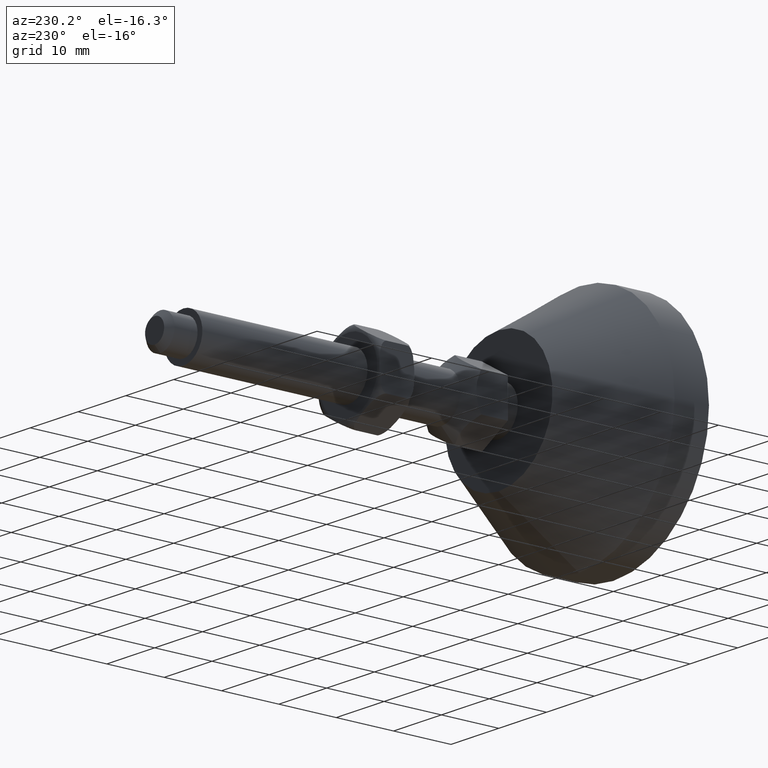
[diagram: clean part render]
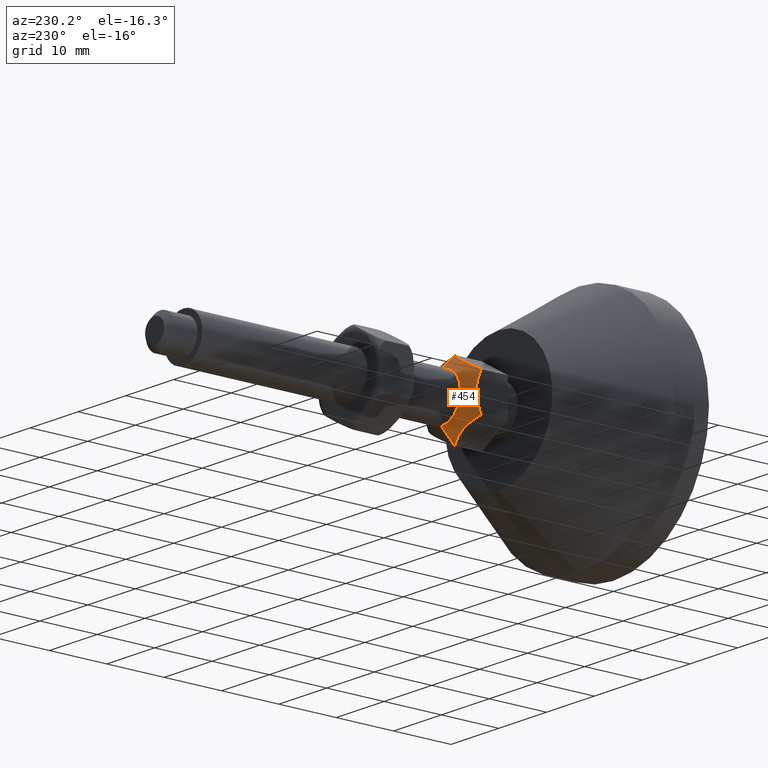
[diagram: same view with one face highlighted and labeled with its STEP entity id]
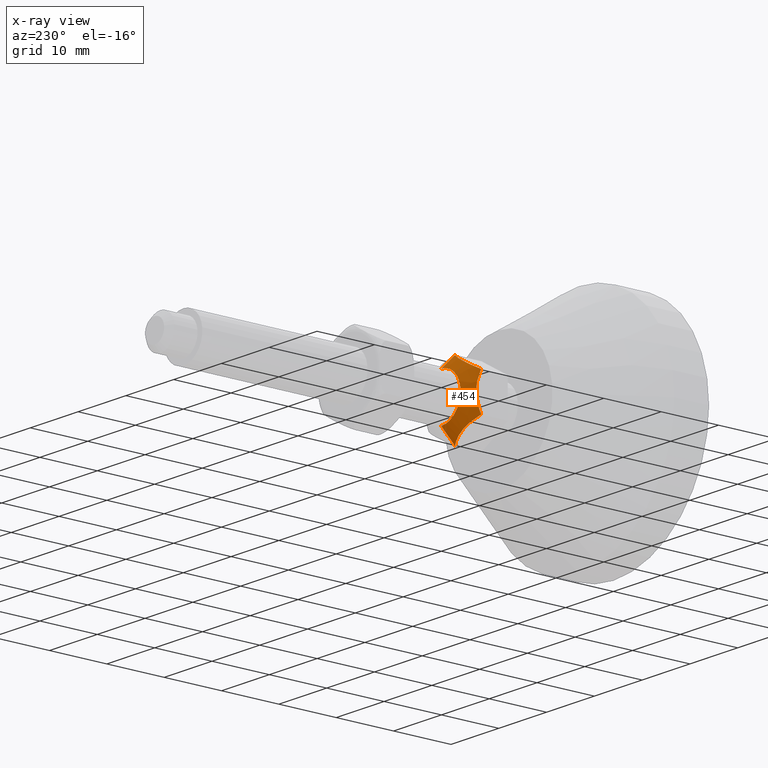
[diagram: x-ray of the same camera — body ghosted, the highlighted face saturated]
A machine part, auxiliary view. The second image highlights one B-rep face of the part: STEP entity #454.
The next image is the same camera in x-ray: the body ghosted, the highlighted face saturated — about 0% of this face is hidden behind the body in this view.
In plain terms, the highlighted conical surface has half-angle 45 deg.
Its self-contained STEP definition (entity closure, byte-faithful):
#71 = CARTESIAN_POINT ( 'NONE',  ( 4.898587196589412800E-016, 30.00000000000006800, 4.000000000000000000 ) ) ;
#74 = CARTESIAN_POINT ( 'NONE',  ( -5.499999999999997300, 27.64914703891415800, 3.175426480542943500 ) ) ;
#76 = CARTESIAN_POINT ( 'NONE',  ( 0.0000000000000000000, 30.00000000000006800, -4.000000000000000000 ) ) ;
#125 = DIRECTION ( 'NONE',  ( 0.0000000000000000000, 0.0000000000000000000, -1.000000000000000000 ) ) ;
#159 = DIRECTION ( 'NONE',  ( 0.0000000000000000000, -1.000000000000000000, 0.0000000000000000000 ) ) ;
#170 = CARTESIAN_POINT ( 'NONE',  ( -5.499999999999997300, 27.64914703891415800, -3.175426480542944900 ) ) ;
#190 = CARTESIAN_POINT ( 'NONE',  ( 0.0000000000000000000, 30.00000000000006800, 0.0000000000000000000 ) ) ;
#214 = CARTESIAN_POINT ( 'NONE',  ( 1.210292151420124500E-016, 27.64914703891415800, 6.350852961085883500 ) ) ;
#228 = AXIS2_PLACEMENT_3D ( 'NONE', #190, #159, #125 ) ;
#251 = VERTEX_POINT ( 'NONE', #214 ) ;
#263 = VERTEX_POINT ( 'NONE', #170 ) ;
#328 = B_SPLINE_CURVE_WITH_KNOTS ( 'NONE', 3,
 ( #1200, #1201, #1202, #1203, #1204, #1205, #1206, #1207, #1208, #1209, #1210, #1211, #1212, #1213 ),
 .UNSPECIFIED., .F., .F.,
 ( 4, 2, 2, 2, 2, 2, 4 ),
 ( -0.004257705178608600600, -0.002601183115990478000, -0.001772922084681416500, -0.0009446610533723554300, -0.0001164000220632947800, 0.0007118610092457676100, 0.002368383071863888100 ),
 .UNSPECIFIED. ) ;
#329 = B_SPLINE_CURVE_WITH_KNOTS ( 'NONE', 3,
 ( #1224, #1225, #1226, #1227, #1228, #1229, #1230, #1231, #1232, #1233, #1234, #1235 ),
 .UNSPECIFIED., .F., .F.,
 ( 4, 2, 2, 2, 2, 4 ),
 ( 0.0000000000000000000, 0.001640045484357328700, 0.002460068226535991100, 0.003280090968714653900, 0.004920136453071980400, 0.006560181937429306100 ),
 .UNSPECIFIED. ) ;
#330 = B_SPLINE_CURVE_WITH_KNOTS ( 'NONE', 3,
 ( #1236, #1237, #1238, #1239, #1240, #1241, #1242, #1243, #1244, #1245, #1246, #1247 ),
 .UNSPECIFIED., .F., .F.,
 ( 4, 2, 2, 2, 2, 4 ),
 ( 0.0000000000000000000, 0.001640045484357331100, 0.002460068226535994500, 0.003280090968714658200, 0.004920136453071985600, 0.006560181937429313900 ),
 .UNSPECIFIED. ) ;
#341 = ORIENTED_EDGE ( 'NONE', *, *, #500, .T. ) ;
#343 = ORIENTED_EDGE ( 'NONE', *, *, #496, .F. ) ;
#350 = ORIENTED_EDGE ( 'NONE', *, *, #518, .F. ) ;
#351 = ORIENTED_EDGE ( 'NONE', *, *, #533, .F. ) ;
#377 = ORIENTED_EDGE ( 'NONE', *, *, #527, .F. ) ;
#378 = ORIENTED_EDGE ( 'NONE', *, *, #534, .F. ) ;
#418 = EDGE_LOOP ( 'NONE', ( #343, #350, #341, #351, #378, #377 ) ) ;
#454 = ADVANCED_FACE ( 'NONE', ( #679 ), #680, .T. ) ;
#496 = EDGE_CURVE ( 'NONE', #1457, #251, #725, .T. ) ;
#500 = EDGE_CURVE ( 'NONE', #1462, #1426, #728, .T. ) ;
#518 = EDGE_CURVE ( 'NONE', #1462, #1457, #756, .T. ) ;
#527 = EDGE_CURVE ( 'NONE', #251, #1460, #328, .T. ) ;
#533 = EDGE_CURVE ( 'NONE', #263, #1426, #329, .T. ) ;
#534 = EDGE_CURVE ( 'NONE', #1460, #263, #330, .T. ) ;
#679 = FACE_OUTER_BOUND ( 'NONE', #418, .T. ) ;
#680 = CONICAL_SURFACE ( 'NONE', #228, 4.000000000000000000, 0.7853981633974426200 ) ;
#725 = LINE ( 'NONE', #1097, #727 ) ;
#727 = VECTOR ( 'NONE', #1098, 1000.000000000000000 ) ;
#728 = LINE ( 'NONE', #1135, #729 ) ;
#729 = VECTOR ( 'NONE', #1136, 1000.000000000000000 ) ;
#756 = CIRCLE ( 'NONE', #1018, 4.000000000000000000 ) ;
#1018 = AXIS2_PLACEMENT_3D ( 'NONE', #1180, #1181, #1182 ) ;
#1097 = CARTESIAN_POINT ( 'NONE',  ( 4.898587196589412800E-016, 30.00000000000006800, 4.000000000000000000 ) ) ;
#1098 = DIRECTION ( 'NONE',  ( 8.659560562354884800E-017, -0.7071067811865515700, 0.7071067811865435800 ) ) ;
#1135 = CARTESIAN_POINT ( 'NONE',  ( 0.0000000000000000000, 30.00000000000006800, -4.000000000000000000 ) ) ;
#1136 = DIRECTION ( 'NONE',  ( 0.0000000000000000000, -0.7071067811865515700, -0.7071067811865435800 ) ) ;
#1180 = CARTESIAN_POINT ( 'NONE',  ( 0.0000000000000000000, 30.00000000000006800, 0.0000000000000000000 ) ) ;
#1181 = DIRECTION ( 'NONE',  ( -0.0000000000000000000, 1.000000000000000000, -0.0000000000000000000 ) ) ;
#1182 = DIRECTION ( 'NONE',  ( 0.0000000000000000000, 0.0000000000000000000, 1.000000000000000000 ) ) ;
#1200 = CARTESIAN_POINT ( 'NONE',  ( 1.210292151420124500E-016, 27.64914703891415800, 6.350852961085883500 ) ) ;
#1201 = CARTESIAN_POINT ( 'NONE',  ( -0.4295661448577776100, 27.89715716828255400, 6.102842831717494800 ) ) ;
#1202 = CARTESIAN_POINT ( 'NONE',  ( -0.8688177507198684400, 28.10804001061039500, 5.849240798831040400 ) ) ;
#1203 = CARTESIAN_POINT ( 'NONE',  ( -1.551248685140500300, 28.33407652152132900, 5.455239115139961300 ) ) ;
#1204 = CARTESIAN_POINT ( 'NONE',  ( -1.782692623127053900, 28.39421547414045900, 5.321614895241118900 ) ) ;
#1205 = CARTESIAN_POINT ( 'NONE',  ( -2.255359999991354900, 28.47700560914879000, 5.048720257971360100 ) ) ;
#1206 = CARTESIAN_POINT ( 'NONE',  ( -2.498473888824595400, 28.49937408091950900, 4.908358388809752200 ) ) ;
#1207 = CARTESIAN_POINT ( 'NONE',  ( -2.980559108735756400, 28.50059927576792900, 4.630026357321703800 ) ) ;
#1208 = CARTESIAN_POINT ( 'NONE',  ( -3.220710317390226500, 28.47997039680492300, 4.491374992358830200 ) ) ;
#1209 = CARTESIAN_POINT ( 'NONE',  ( -3.699324743158726400, 28.39848896812198500, 4.215046824803350100 ) ) ;
#1210 = CARTESIAN_POINT ( 'NONE',  ( -3.935301747863873000, 28.33799670579288900, 4.078805437614271900 ) ) ;
#1211 = CARTESIAN_POINT ( 'NONE',  ( -4.626170693343998300, 28.11073298873897400, 3.679932065966570000 ) ) ;
#1212 = CARTESIAN_POINT ( 'NONE',  ( -5.068549116617297100, 27.89824532257727100, 3.424524764206046800 ) ) ;
#1213 = CARTESIAN_POINT ( 'NONE',  ( -5.499999999999997300, 27.64914703891415800, 3.175426480542943500 ) ) ;
#1224 = CARTESIAN_POINT ( 'NONE',  ( -5.499999999999997300, 27.64914703891415800, -3.175426480542944900 ) ) ;
#1225 = CARTESIAN_POINT ( 'NONE',  ( -5.070269829285273900, 27.89725186865520000, -3.423531310283991900 ) ) ;
#1226 = CARTESIAN_POINT ( 'NONE',  ( -4.630846942347155900, 28.10820159991739300, -3.677232232345798700 ) ) ;
#1227 = CARTESIAN_POINT ( 'NONE',  ( -3.948137218090312500, 28.33425461675262000, -4.071394875423860200 ) ) ;
#1228 = CARTESIAN_POINT ( 'NONE',  ( -3.716596638589092300, 28.39438484378446500, -4.205074891327214500 ) ) ;
#1229 = CARTESIAN_POINT ( 'NONE',  ( -3.243726346793822700, 28.47712060564037600, -4.478086681586990600 ) ) ;
#1230 = CARTESIAN_POINT ( 'NONE',  ( -3.000190029879570300, 28.49939848564966000, -4.618692439714883400 ) ) ;
#1231 = CARTESIAN_POINT ( 'NONE',  ( -2.279986642540663900, 28.50116577069811200, -5.034502059266280600 ) ) ;
#1232 = CARTESIAN_POINT ( 'NONE',  ( -1.808049599457569800, 28.41721705525524700, -5.306975038130861600 ) ) ;
#1233 = CARTESIAN_POINT ( 'NONE',  ( -0.8773331336280223400, 28.11270184307209200, -5.844324440216767300 ) ) ;
#1234 = CARTESIAN_POINT ( 'NONE',  ( -0.4322596680683557000, 27.89871227463324000, -6.101287725366798800 ) ) ;
#1235 = CARTESIAN_POINT ( 'NONE',  ( 2.240935430205336300E-015, 27.64914703891415800, -6.350852961085884400 ) ) ;
#1236 = CARTESIAN_POINT ( 'NONE',  ( -5.499999999999997300, 27.64914703891415800, 3.175426480542943500 ) ) ;
#1237 = CARTESIAN_POINT ( 'NONE',  ( -5.499999999999998200, 27.89725186865520700, 2.679216821060845800 ) ) ;
#1238 = CARTESIAN_POINT ( 'NONE',  ( -5.499999999999998200, 28.10820159991740000, 2.171814976937235900 ) ) ;
#1239 = CARTESIAN_POINT ( 'NONE',  ( -5.499999999999996400, 28.33425461675262400, 1.383489690781109200 ) ) ;
#1240 = CARTESIAN_POINT ( 'NONE',  ( -5.499999999999999100, 28.39438484378446900, 1.116129658974403000 ) ) ;
#1241 = CARTESIAN_POINT ( 'NONE',  ( -5.499999999999996400, 28.47712060564036900, 0.5701060784548504000 ) ) ;
#1242 = CARTESIAN_POINT ( 'NONE',  ( -5.499999999999997300, 28.49939848564965700, 0.2888945621990629500 ) ) ;
#1243 = CARTESIAN_POINT ( 'NONE',  ( -5.499999999999998200, 28.50116577069811500, -0.5427246769037346000 ) ) ;
#1244 = CARTESIAN_POINT ( 'NONE',  ( -5.499999999999999100, 28.41721705525526800, -1.087670634632895300 ) ) ;
#1245 = CARTESIAN_POINT ( 'NONE',  ( -5.499999999999998200, 28.11270184307209900, -2.162369438804709000 ) ) ;
#1246 = CARTESIAN_POINT ( 'NONE',  ( -5.499999999999997300, 27.89871227463325100, -2.676296009104775800 ) ) ;
#1247 = CARTESIAN_POINT ( 'NONE',  ( -5.499999999999997300, 27.64914703891415800, -3.175426480542944900 ) ) ;
#1385 = CARTESIAN_POINT ( 'NONE',  ( 2.240935430205336300E-015, 27.64914703891415800, -6.350852961085884400 ) ) ;
#1426 = VERTEX_POINT ( 'NONE', #1385 ) ;
#1457 = VERTEX_POINT ( 'NONE', #71 ) ;
#1460 = VERTEX_POINT ( 'NONE', #74 ) ;
#1462 = VERTEX_POINT ( 'NONE', #76 ) ;